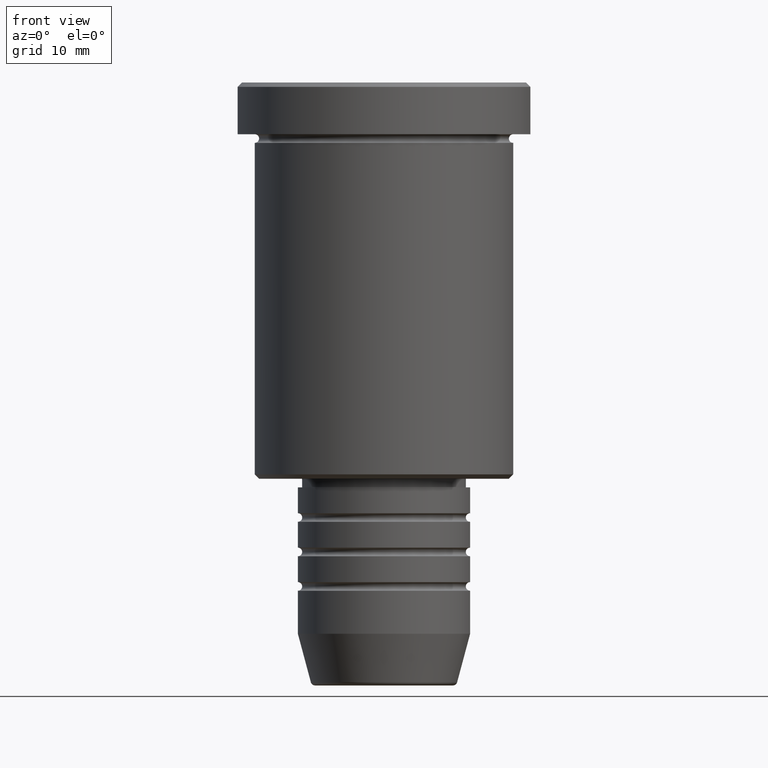
[diagram: clean part render]
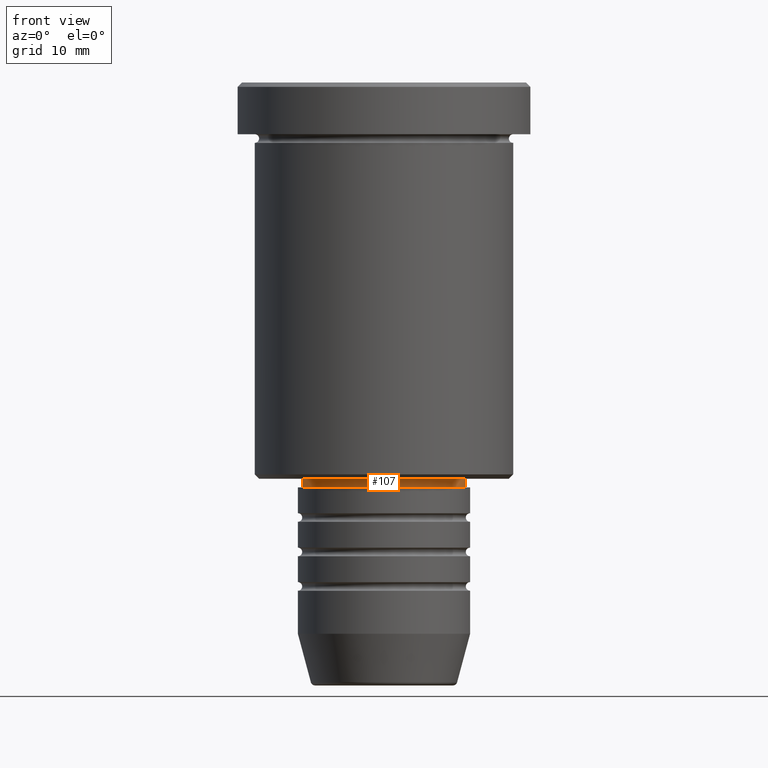
[diagram: same view with one face highlighted and labeled with its STEP entity id]
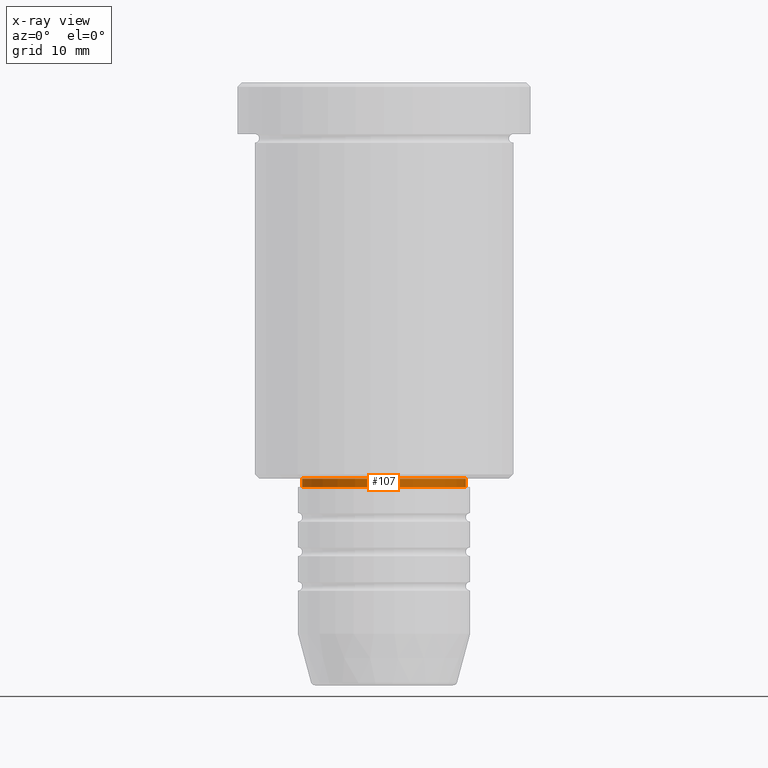
[diagram: x-ray of the same camera — body ghosted, the highlighted face saturated]
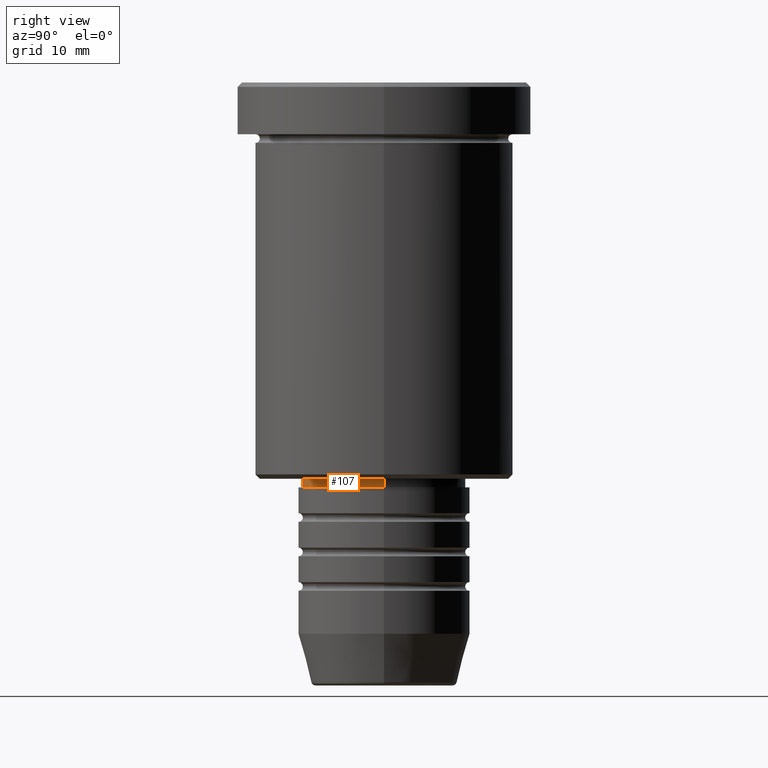
[diagram: same view with one face highlighted and labeled with its STEP entity id]
A machine part, front view. The second image highlights one B-rep face of the part: STEP entity #107.
The next image is the same camera in x-ray: the body ghosted, the highlighted face saturated — about 0% of this face is hidden behind the body in this view.
A second angle (right view) of the same face is appended — the face is thin or edge-on in the first view.
In plain terms, the highlighted cylindrical surface (partial cylindrical patch) has radius 9.5 mm, axis along (-0, -0, 1).
Its self-contained STEP definition (entity closure, byte-faithful):
#2 = DIRECTION ( 'NONE',  ( 1.000000000000000000, 0.000000000000000000, 0.000000000000000000 ) ) ;
#3 = VERTEX_POINT ( 'NONE', #406 ) ;
#29 = ORIENTED_EDGE ( 'NONE', *, *, #631, .T. ) ;
#75 = VERTEX_POINT ( 'NONE', #869 ) ;
#88 = DIRECTION ( 'NONE',  ( -0.000000000000000000, -0.000000000000000000, 1.000000000000000000 ) ) ;
#100 = EDGE_CURVE ( 'NONE', #810, #75, #220, .T. ) ;
#107 = ADVANCED_FACE ( 'NONE', ( #864 ), #238, .T. ) ;
#113 = AXIS2_PLACEMENT_3D ( 'NONE', #179, #1099, #277 ) ;
#144 = EDGE_CURVE ( 'NONE', #3, #600, #527, .T. ) ;
#166 = CARTESIAN_POINT ( 'NONE',  ( -9.500000000000001776, 1.163414459189985682E-15, 0.000000000000000000 ) ) ;
#179 = CARTESIAN_POINT ( 'NONE',  ( 0.000000000000000000, 0.000000000000000000, -46.00000000000000000 ) ) ;
#220 = LINE ( 'NONE', #229, #412 ) ;
#228 = VECTOR ( 'NONE', #1003, 1000.000000000000000 ) ;
#229 = CARTESIAN_POINT ( 'NONE',  ( 9.500000000000001776, 0.000000000000000000, 0.000000000000000000 ) ) ;
#238 = CYLINDRICAL_SURFACE ( 'NONE', #853, 9.500000000000001776 ) ;
#277 = DIRECTION ( 'NONE',  ( 1.000000000000000000, 0.000000000000000000, 0.000000000000000000 ) ) ;
#406 = CARTESIAN_POINT ( 'NONE',  ( -9.500000000000000000, 1.163414459189985485E-15, -47.00000000000000000 ) ) ;
#412 = VECTOR ( 'NONE', #581, 1000.000000000000000 ) ;
#437 = ORIENTED_EDGE ( 'NONE', *, *, #144, .F. ) ;
#489 = CIRCLE ( 'NONE', #113, 9.500000000000001776 ) ;
#527 = LINE ( 'NONE', #166, #228 ) ;
#581 = DIRECTION ( 'NONE',  ( -0.000000000000000000, -0.000000000000000000, 1.000000000000000000 ) ) ;
#592 = CARTESIAN_POINT ( 'NONE',  ( 0.000000000000000000, 0.000000000000000000, 0.000000000000000000 ) ) ;
#600 = VERTEX_POINT ( 'NONE', #997 ) ;
#612 = CIRCLE ( 'NONE', #925, 9.500000000000000000 ) ;
#624 = ORIENTED_EDGE ( 'NONE', *, *, #100, .T. ) ;
#631 = EDGE_CURVE ( 'NONE', #3, #810, #612, .T. ) ;
#807 = CARTESIAN_POINT ( 'NONE',  ( 0.000000000000000000, 0.000000000000000000, -47.00000000000000000 ) ) ;
#810 = VERTEX_POINT ( 'NONE', #952 ) ;
#853 = AXIS2_PLACEMENT_3D ( 'NONE', #592, #965, #2 ) ;
#864 = FACE_OUTER_BOUND ( 'NONE', #1066, .T. ) ;
#869 = CARTESIAN_POINT ( 'NONE',  ( 9.500000000000001776, 0.000000000000000000, -46.00000000000000000 ) ) ;
#917 = DIRECTION ( 'NONE',  ( 1.000000000000000000, 0.000000000000000000, 0.000000000000000000 ) ) ;
#925 = AXIS2_PLACEMENT_3D ( 'NONE', #807, #88, #917 ) ;
#952 = CARTESIAN_POINT ( 'NONE',  ( 9.500000000000000000, 0.000000000000000000, -47.00000000000000000 ) ) ;
#965 = DIRECTION ( 'NONE',  ( -0.000000000000000000, -0.000000000000000000, 1.000000000000000000 ) ) ;
#997 = CARTESIAN_POINT ( 'NONE',  ( -9.500000000000001776, 1.163414459189985682E-15, -46.00000000000000000 ) ) ;
#1003 = DIRECTION ( 'NONE',  ( -0.000000000000000000, -0.000000000000000000, 1.000000000000000000 ) ) ;
#1044 = ORIENTED_EDGE ( 'NONE', *, *, #1158, .F. ) ;
#1066 = EDGE_LOOP ( 'NONE', ( #437, #29, #624, #1044 ) ) ;
#1099 = DIRECTION ( 'NONE',  ( -0.000000000000000000, -0.000000000000000000, 1.000000000000000000 ) ) ;
#1158 = EDGE_CURVE ( 'NONE', #600, #75, #489, .T. ) ;